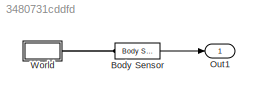
MODEL slx_3480731cddfd
KIND model
CONFIG AbsTol = auto
CONFIG EnableMultiTasking = off
CONFIG FixedStep = auto
CONFIG MaxStep = auto
CONFIG MinStep = auto
CONFIG RelTol = 1e-3
CONFIG SampleTimeConstraint = Unconstrained
CONFIG SolverName = VariableStepAuto
CONFIG StartTime = 0.0
CONFIG StopTime = 10.0
BLOCK [Reference] Body Sensor  REF=sm_car_lib/Sensors/Body Sensor  (lib defined in slx_05426f0848b6, slx_5dc2867fb1c9)
  Ports = [0, 1, 0, 0, 0, 1]
  SourceBlock = sm_car_lib/Sensors/Body Sensor
BLOCK [Outport] Out1
  AttributesFormatString = %<OutDataTypeStr>
  OutDataTypeStr = Bus: VehicleBodyBusDef
  VectorParamsAs1DForOutWhenUnconnected = off
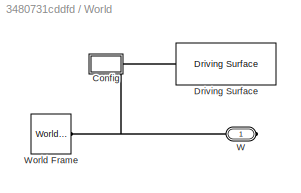
BLOCK [SubSystem] World
  Ports = [0, 0, 0, 0, 0, 0, 1]
  RequestExecContextInheritance = off
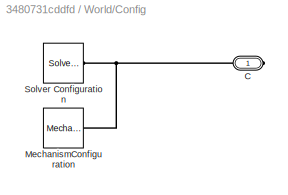
BLOCK [SubSystem] World/Config
  NameLocation = top
  Ports = [0, 0, 0, 0, 0, 0, 1]
  RequestExecContextInheritance = off
BLOCK [PMIOPort] World/Config/C
  Side = Right
BLOCK [Reference] World/Config/MechanismConfiguration  REF=sm_lib/Utilities/Mechanism
Configuration
  Ports = [0, 0, 0, 0, 0, 0, 1]
  SourceBlock = sm_lib/Utilities/Mechanism\nConfiguration
  SourceProductBaseCode = MS
  SourceType = Mechanism\nConfiguration
BLOCK [Reference] World/Config/Solver Configuration  REF=nesl_utility/Solver
Configuration
  Ports = [0, 0, 0, 0, 0, 0, 1]
  SourceBlock = nesl_utility/Solver\nConfiguration
  SourceProductBaseCode = SS,PW,VE
  SourceType = Solver\nConfiguration
BLOCK [Reference] World/Driving Surface  REF=sm_car_lib/Environment/Driving Surface  (lib defined in slx_05426f0848b6, slx_5dc2867fb1c9)
  Ports = [0, 0, 0, 0, 0, 0, 1]
  SourceBlock = sm_car_lib/Environment/Driving Surface
  SourceType = Driving Surface
BLOCK [PMIOPort] World/W
  Side = Right
BLOCK [Reference] World/World Frame  REF=sm_lib/Frames and
Transforms/World Frame
  Ports = [0, 0, 0, 0, 0, 0, 1]
  SourceBlock = sm_lib/Frames and\nTransforms/World Frame
  SourceProductBaseCode = MS
  SourceType = World Frame
LINE Body Sensor:1 -> Out1:1
PLINE Body Sensor:LConn1 -- World:RConn1
PNET net1: World/Config/C:RConn1 -- World/Config/MechanismConfiguration:RConn1 -- World/Config/Solver Configuration:RConn1
PNET net2: World/Config:RConn1 -- World/Driving Surface:RConn1 -- World/W:RConn1 -- World/World Frame:RConn1
note: PNET lines group multi-terminal physical nets as a canonical sorted terminal list (undirected conserving connections); 2-terminal nets keep the pairwise PLINE form
